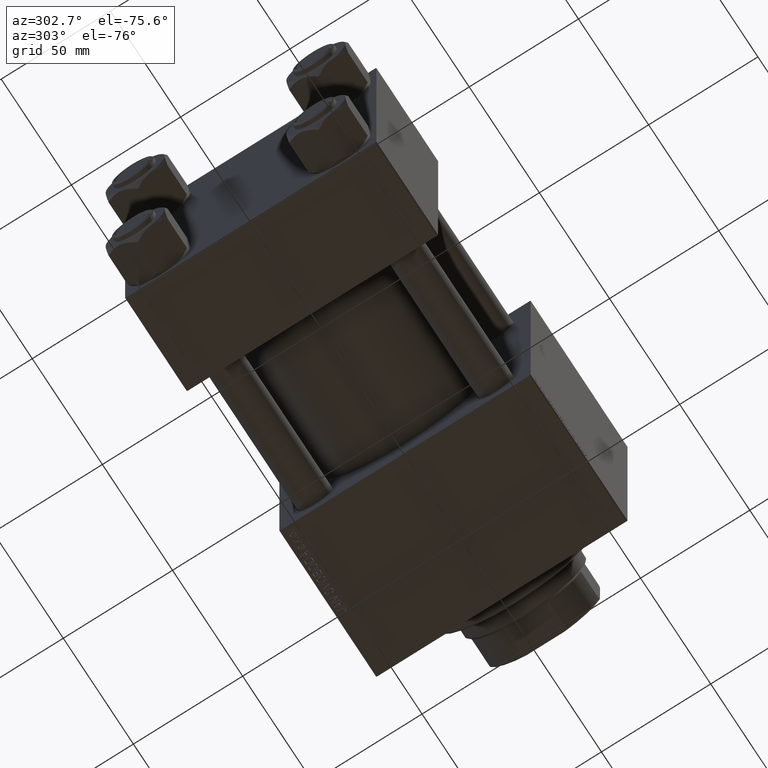
[diagram: clean part render]
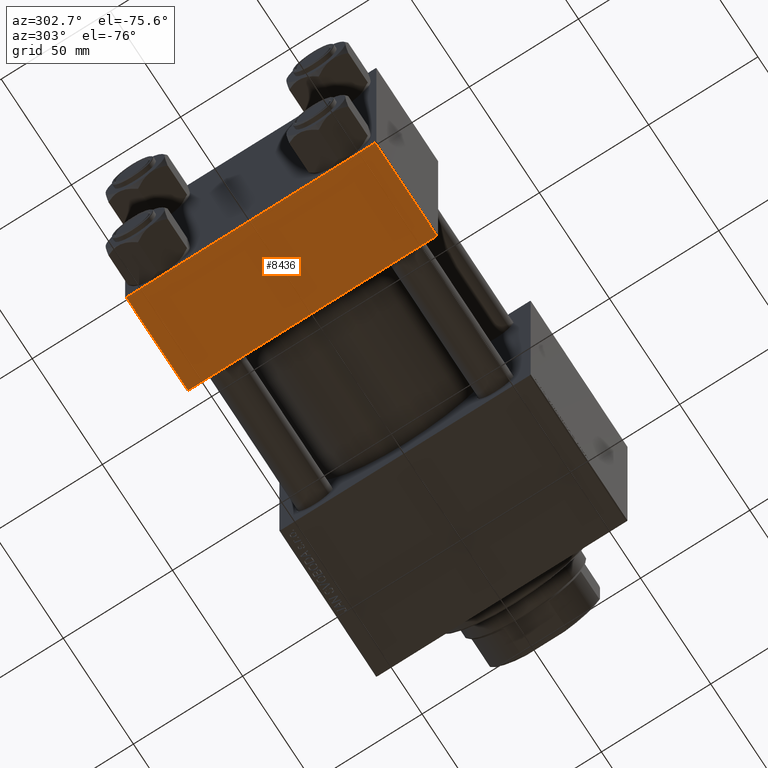
[diagram: same view with one face highlighted and labeled with its STEP entity id]
A machine part, auxiliary view. The second image highlights one B-rep face of the part: STEP entity #8436.
In plain terms, the highlighted planar face has unit normal (0, 0, -1).
Its self-contained STEP definition (entity closure, byte-faithful):
#3265 = VERTEX_POINT ( 'NONE', #5364 ) ;
#3798 = DIRECTION ( 'NONE',  ( 0.000000000000000000, 1.000000000000000000, 1.206764157201257045E-16 ) ) ;
#5364 = CARTESIAN_POINT ( 'NONE',  ( 44.00000000000000000, -57.00000000000000711, -57.50000000000000711 ) ) ;
#7572 = ORIENTED_EDGE ( 'NONE', *, *, #7662, .T. ) ;
#7662 = EDGE_CURVE ( 'NONE', #3265, #29614, #36318, .T. ) ;
#8382 = DIRECTION ( 'NONE',  ( 0.000000000000000000, 1.206764157201257045E-16, -1.000000000000000000 ) ) ;
#8436 = ADVANCED_FACE ( 'NONE', ( #12238 ), #19694, .T. ) ;
#12238 = FACE_OUTER_BOUND ( 'NONE', #44433, .T. ) ;
#14814 = DIRECTION ( 'NONE',  ( 0.000000000000000000, -1.000000000000000000, -1.206764157201257045E-16 ) ) ;
#15754 = VECTOR ( 'NONE', #35541, 1000.000000000000000 ) ;
#16207 = CARTESIAN_POINT ( 'NONE',  ( 44.00000000000000000, 57.00000000000002132, -57.49999999999999289 ) ) ;
#16376 = EDGE_CURVE ( 'NONE', #22251, #36861, #18423, .T. ) ;
#18423 = LINE ( 'NONE', #30964, #15754 ) ;
#19412 = ORIENTED_EDGE ( 'NONE', *, *, #30214, .T. ) ;
#19694 = PLANE ( 'NONE',  #34127 ) ;
#22251 = VERTEX_POINT ( 'NONE', #35510 ) ;
#22313 = ORIENTED_EDGE ( 'NONE', *, *, #29997, .F. ) ;
#22825 = CARTESIAN_POINT ( 'NONE',  ( 0.000000000000000000, -57.00000000000000711, -57.50000000000000711 ) ) ;
#26734 = VECTOR ( 'NONE', #30636, 1000.000000000000000 ) ;
#27538 = VECTOR ( 'NONE', #36062, 1000.000000000000000 ) ;
#29614 = VERTEX_POINT ( 'NONE', #22825 ) ;
#29997 = EDGE_CURVE ( 'NONE', #22251, #29614, #30948, .T. ) ;
#30214 = EDGE_CURVE ( 'NONE', #36861, #3265, #42153, .T. ) ;
#30636 = DIRECTION ( 'NONE',  ( 0.000000000000000000, -1.000000000000000000, -1.206764157201257045E-16 ) ) ;
#30948 = LINE ( 'NONE', #38384, #41428 ) ;
#30964 = CARTESIAN_POINT ( 'NONE',  ( 44.00000000000000000, 57.00000000000002132, -57.49999999999999289 ) ) ;
#34127 = AXIS2_PLACEMENT_3D ( 'NONE', #39143, #8382, #3798 ) ;
#35510 = CARTESIAN_POINT ( 'NONE',  ( 0.000000000000000000, 57.00000000000002132, -57.49999999999999289 ) ) ;
#35541 = DIRECTION ( 'NONE',  ( 1.000000000000000000, 0.000000000000000000, 0.000000000000000000 ) ) ;
#36062 = DIRECTION ( 'NONE',  ( -1.000000000000000000, 0.000000000000000000, 0.000000000000000000 ) ) ;
#36318 = LINE ( 'NONE', #48086, #27538 ) ;
#36728 = ORIENTED_EDGE ( 'NONE', *, *, #16376, .T. ) ;
#36861 = VERTEX_POINT ( 'NONE', #16207 ) ;
#38384 = CARTESIAN_POINT ( 'NONE',  ( 0.000000000000000000, 57.49999999999999289, -57.49999999999999289 ) ) ;
#39143 = CARTESIAN_POINT ( 'NONE',  ( 44.00000000000000000, 57.49999999999999289, -57.49999999999999289 ) ) ;
#41428 = VECTOR ( 'NONE', #14814, 1000.000000000000000 ) ;
#42153 = LINE ( 'NONE', #50586, #26734 ) ;
#44433 = EDGE_LOOP ( 'NONE', ( #22313, #36728, #19412, #7572 ) ) ;
#48086 = CARTESIAN_POINT ( 'NONE',  ( 0.000000000000000000, -57.00000000000000711, -57.50000000000000711 ) ) ;
#50586 = CARTESIAN_POINT ( 'NONE',  ( 44.00000000000000000, 57.49999999999999289, -57.49999999999999289 ) ) ;